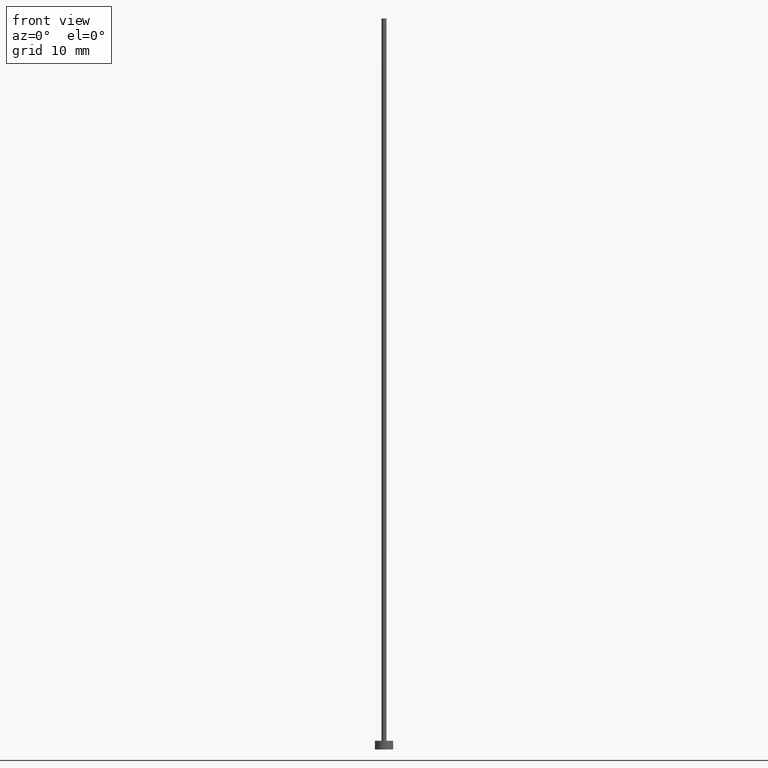
[diagram: clean part render]
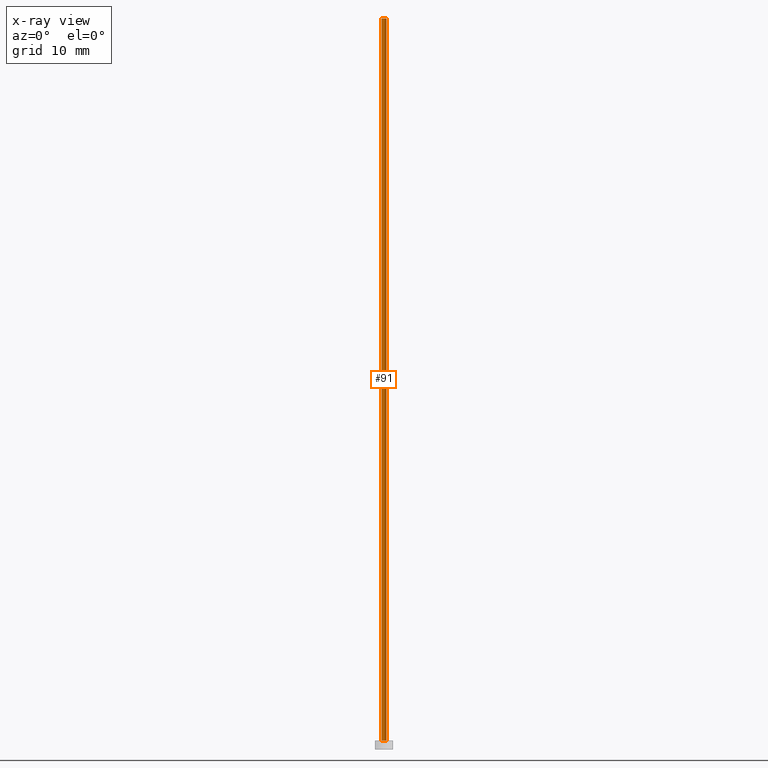
[diagram: x-ray — body ghosted, one internal face saturated and labeled with its STEP entity id]
A machine part, front view, then the same camera in x-ray: the body is ghosted and one INTERNAL B-rep face — a face not visible from any outside direction — is saturated and labeled: STEP entity #91.
In plain terms, the highlighted cylindrical surface (edge-blend (fillet) strip) has radius 0.35 mm, axis along (-0, -0, -1).
Its self-contained STEP definition (entity closure, byte-faithful):
#3 = DIRECTION ( 'NONE',  ( 0.000000000000000000, 0.000000000000000000, 1.000000000000000000 ) ) ;
#6 = VERTEX_POINT ( 'NONE', #139 ) ;
#8 = CARTESIAN_POINT ( 'NONE',  ( 0.3499999999999999778, 4.286263797015735979E-17, 100.0000000000000000 ) ) ;
#10 = FACE_OUTER_BOUND ( 'NONE', #28, .T. ) ;
#16 = CIRCLE ( 'NONE', #255, 0.3499999999999999778 ) ;
#17 = DIRECTION ( 'NONE',  ( -0.000000000000000000, -0.000000000000000000, -1.000000000000000000 ) ) ;
#19 = ORIENTED_EDGE ( 'NONE', *, *, #52, .F. ) ;
#22 = CARTESIAN_POINT ( 'NONE',  ( -0.3499999999999999778, 0.000000000000000000, 100.0000000000000000 ) ) ;
#28 = EDGE_LOOP ( 'NONE', ( #209, #84, #71, #19 ) ) ;
#49 = LINE ( 'NONE', #8, #93 ) ;
#52 = EDGE_CURVE ( 'NONE', #154, #253, #150, .T. ) ;
#64 = DIRECTION ( 'NONE',  ( -0.000000000000000000, -0.000000000000000000, -1.000000000000000000 ) ) ;
#71 = ORIENTED_EDGE ( 'NONE', *, *, #140, .T. ) ;
#73 = CARTESIAN_POINT ( 'NONE',  ( 0.000000000000000000, 0.000000000000000000, 100.0000000000000000 ) ) ;
#84 = ORIENTED_EDGE ( 'NONE', *, *, #95, .T. ) ;
#91 = ADVANCED_FACE ( 'NONE', ( #10 ), #108, .T. ) ;
#93 = VECTOR ( 'NONE', #64, 1000.000000000000000 ) ;
#94 = AXIS2_PLACEMENT_3D ( 'NONE', #131, #173, #151 ) ;
#95 = EDGE_CURVE ( 'NONE', #6, #195, #49, .T. ) ;
#101 = DIRECTION ( 'NONE',  ( 1.000000000000000000, 0.000000000000000000, 0.000000000000000000 ) ) ;
#108 = CYLINDRICAL_SURFACE ( 'NONE', #254, 0.3499999999999999778 ) ;
#127 = CARTESIAN_POINT ( 'NONE',  ( -0.3499999999999999778, 0.000000000000000000, 1.199999999999999956 ) ) ;
#131 = CARTESIAN_POINT ( 'NONE',  ( 0.000000000000000000, 0.000000000000000000, 1.199999999999999956 ) ) ;
#139 = CARTESIAN_POINT ( 'NONE',  ( 0.3499999999999999778, 4.286263797015735979E-17, 100.0000000000000000 ) ) ;
#140 = EDGE_CURVE ( 'NONE', #195, #253, #170, .T. ) ;
#150 = LINE ( 'NONE', #172, #249 ) ;
#151 = DIRECTION ( 'NONE',  ( 1.000000000000000000, 0.000000000000000000, 0.000000000000000000 ) ) ;
#154 = VERTEX_POINT ( 'NONE', #22 ) ;
#170 = CIRCLE ( 'NONE', #94, 0.3499999999999999778 ) ;
#172 = CARTESIAN_POINT ( 'NONE',  ( -0.3499999999999999778, 0.000000000000000000, 100.0000000000000000 ) ) ;
#173 = DIRECTION ( 'NONE',  ( 0.000000000000000000, 0.000000000000000000, 1.000000000000000000 ) ) ;
#194 = DIRECTION ( 'NONE',  ( -1.000000000000000000, 0.000000000000000000, 0.000000000000000000 ) ) ;
#195 = VERTEX_POINT ( 'NONE', #229 ) ;
#198 = DIRECTION ( 'NONE',  ( -0.000000000000000000, -0.000000000000000000, -1.000000000000000000 ) ) ;
#209 = ORIENTED_EDGE ( 'NONE', *, *, #215, .F. ) ;
#213 = CARTESIAN_POINT ( 'NONE',  ( 0.000000000000000000, 0.000000000000000000, 100.0000000000000000 ) ) ;
#215 = EDGE_CURVE ( 'NONE', #6, #154, #16, .T. ) ;
#229 = CARTESIAN_POINT ( 'NONE',  ( 0.3499999999999999778, 4.286263797015735979E-17, 1.199999999999999956 ) ) ;
#249 = VECTOR ( 'NONE', #17, 1000.000000000000000 ) ;
#253 = VERTEX_POINT ( 'NONE', #127 ) ;
#254 = AXIS2_PLACEMENT_3D ( 'NONE', #73, #198, #194 ) ;
#255 = AXIS2_PLACEMENT_3D ( 'NONE', #213, #3, #101 ) ;